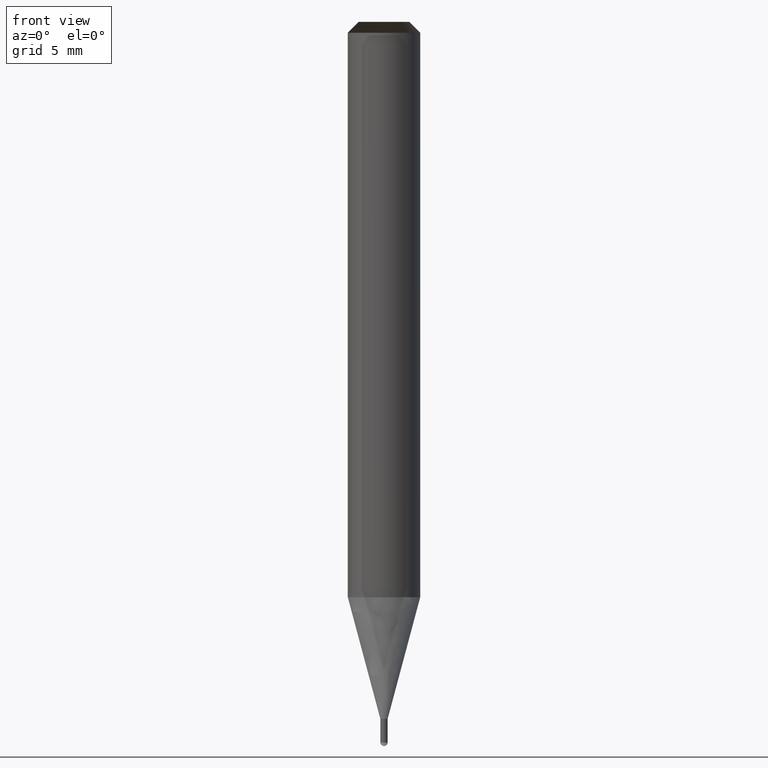
[diagram: clean part render]
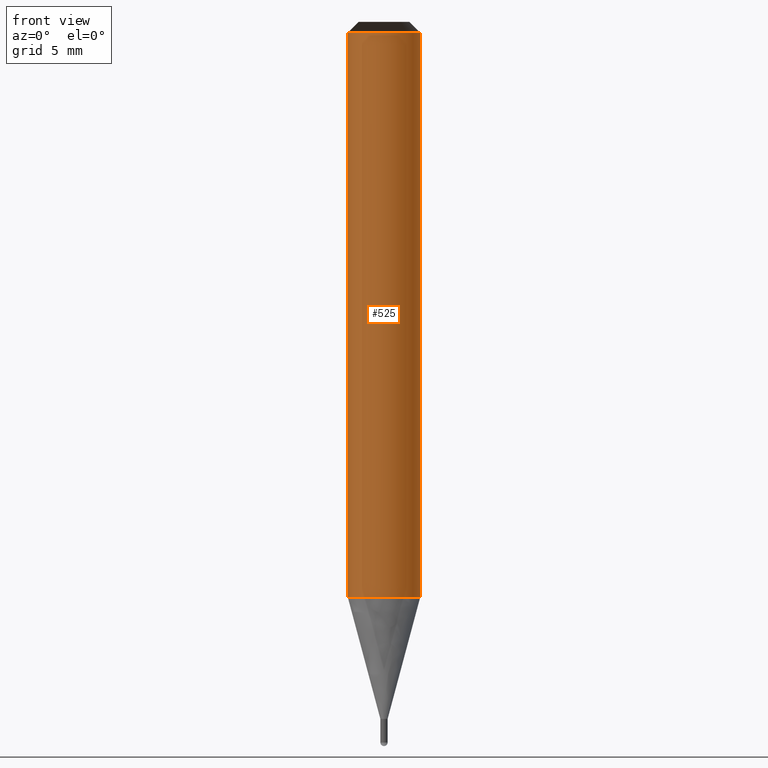
[diagram: same view with one face highlighted and labeled with its STEP entity id]
A machine part, front view. The second image highlights one B-rep face of the part: STEP entity #525.
In plain terms, the highlighted face is a freeform B-spline surface patch.
Its self-contained STEP definition (entity closure, byte-faithful):
#197=CARTESIAN_POINT('',(2.0,0.0,0.0));
#201=CARTESIAN_POINT('',(-2.0,0.0,0.0));
#202=CARTESIAN_POINT('',(2.0,0.0,31.18));
#206=CARTESIAN_POINT('',(-2.0,0.0,31.18));
#216=CARTESIAN_POINT('',(-2.0,-2.0,0.0));
#217=CARTESIAN_POINT('',(0.0,-2.0,0.0));
#218=CARTESIAN_POINT('',(2.0,-2.0,0.0));
#219=CARTESIAN_POINT('',(-2.0,-2.0,31.18));
#220=CARTESIAN_POINT('',(0.0,-2.0,31.18));
#221=CARTESIAN_POINT('',(2.0,-2.0,31.18));
#506=(
BOUNDED_SURFACE()
B_SPLINE_SURFACE(1,2,(
(#201,#216,#217,#218,#197),
(#206,#219,#220,#221,#202)
), .UNSPECIFIED.,.F.,.F.,.F.)
B_SPLINE_SURFACE_WITH_KNOTS((2,2),(3,2,3),(
0.0,1.0),(
0.0,0.5,1.0), .UNSPECIFIED.)
GEOMETRIC_REPRESENTATION_ITEM()
RATIONAL_B_SPLINE_SURFACE(((1.0,0.707106781187,1.0,0.707106781187,1.0),
(1.0,0.707106781187,1.0,0.707106781187,1.0)
))
REPRESENTATION_ITEM('')
SURFACE()
);
#507=(
BOUNDED_CURVE()
B_SPLINE_CURVE(1,(#206,#201),.UNSPECIFIED.,.F.,.F.)
B_SPLINE_CURVE_WITH_KNOTS((2,2),
(0.0,1.0),.UNSPECIFIED.)
CURVE()
GEOMETRIC_REPRESENTATION_ITEM()
RATIONAL_B_SPLINE_CURVE((1.0,1.0))
REPRESENTATION_ITEM('')
);
#508=(
BOUNDED_CURVE()
B_SPLINE_CURVE(2,(#201,#216,#217,#218,#197),.UNSPECIFIED.,.F.,.F.)
B_SPLINE_CURVE_WITH_KNOTS((3,2,3),
(0.0,0.5,1.0),.UNSPECIFIED.)
CURVE()
GEOMETRIC_REPRESENTATION_ITEM()
RATIONAL_B_SPLINE_CURVE((1.0,0.707106781187,1.0,0.707106781187,1.0))
REPRESENTATION_ITEM('')
);
#509=(
BOUNDED_CURVE()
B_SPLINE_CURVE(1,(#197,#202),.UNSPECIFIED.,.F.,.F.)
B_SPLINE_CURVE_WITH_KNOTS((2,2),
(0.0,1.0),.UNSPECIFIED.)
CURVE()
GEOMETRIC_REPRESENTATION_ITEM()
RATIONAL_B_SPLINE_CURVE((1.0,1.0))
REPRESENTATION_ITEM('')
);
#510=(
BOUNDED_CURVE()
B_SPLINE_CURVE(2,(#202,#221,#220,#219,#206),.UNSPECIFIED.,.F.,.F.)
B_SPLINE_CURVE_WITH_KNOTS((3,2,3),
(0.0,0.5,1.0),.UNSPECIFIED.)
CURVE()
GEOMETRIC_REPRESENTATION_ITEM()
RATIONAL_B_SPLINE_CURVE((1.0,0.707106781187,1.0,0.707106781187,1.0))
REPRESENTATION_ITEM('')
);
#511=VERTEX_POINT('',#197);
#512=VERTEX_POINT('',#201);
#513=VERTEX_POINT('',#202);
#514=VERTEX_POINT('',#206);
#515=EDGE_CURVE('',#514,#512,#507,.T.);
#516=EDGE_CURVE('',#512,#511,#508,.T.);
#517=EDGE_CURVE('',#511,#513,#509,.T.);
#518=EDGE_CURVE('',#513,#514,#510,.T.);
#519=ORIENTED_EDGE('',*,*,#515,.T.);
#520=ORIENTED_EDGE('',*,*,#516,.T.);
#521=ORIENTED_EDGE('',*,*,#517,.T.);
#522=ORIENTED_EDGE('',*,*,#518,.T.);
#523=EDGE_LOOP('',(#519,#520,#521,#522));
#524=FACE_OUTER_BOUND('',#523,.T.);
#525=ADVANCED_FACE('',(#524),#506,.T.);